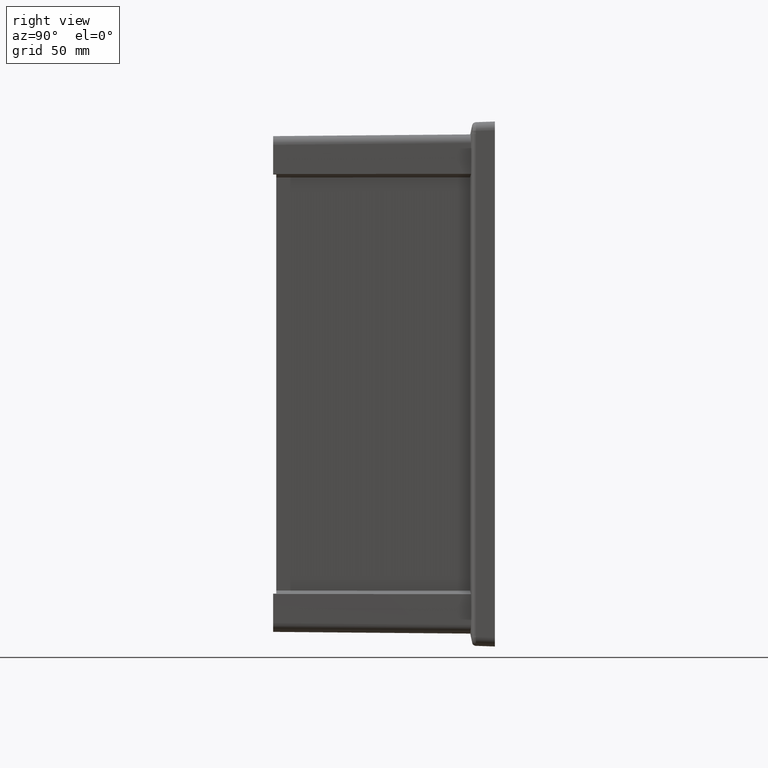
[diagram: clean part render]
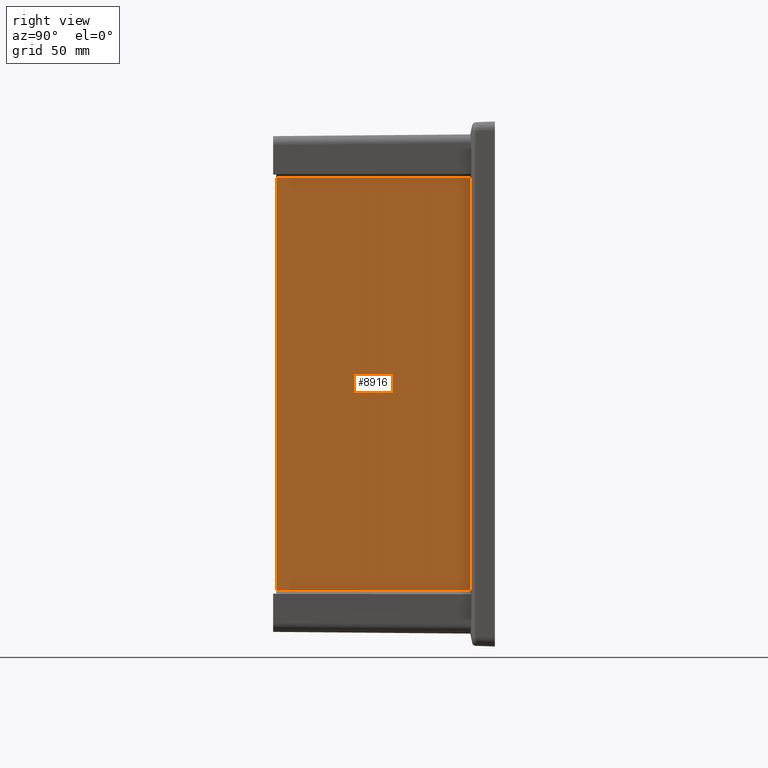
[diagram: same view with one face highlighted and labeled with its STEP entity id]
A machine part, right view. The second image highlights one B-rep face of the part: STEP entity #8916.
In plain terms, the highlighted planar face has unit normal (1, -0.0087, 0).
Its self-contained STEP definition (entity closure, byte-faithful):
#1354=DIRECTION('',(-8.726531697327E-3,-9.999615024574E-1,-9.171955234544E-4));
#1355=VECTOR('',#1354,1.227993807620E2);
#1356=CARTESIAN_POINT('',(1.309515572078E2,-1.570534671242E1,1.309064317165E2));
#1357=LINE('',#1356,#1355);
#1358=DIRECTION('',(-1.257218065010E-12,-4.932630919889E-11,1.E0));
#1359=VECTOR('',#1358,2.618096462930E2);
#1360=CARTESIAN_POINT('',(1.309515572082E2,-1.570534669951E1,
-1.309032145765E2));
#1361=LINE('',#1360,#1359);
#1362=DIRECTION('',(8.726531700559E-3,9.999615024575E-1,-9.171954447533E-4));
#1363=VECTOR('',#1362,1.227993807749E2);
#1364=CARTESIAN_POINT('',(1.298799445190E2,-1.385E2,-1.307905835439E2));
#1365=LINE('',#1364,#1363);
#1366=DIRECTION('',(-6.892893288164E-13,0.E0,-1.E0));
#1367=VECTOR('',#1366,2.615843842180E2);
#1368=CARTESIAN_POINT('',(1.298799445192E2,-1.385E2,1.307938006741E2));
#1369=LINE('',#1368,#1367);
#6125=CARTESIAN_POINT('',(1.298799445190E2,-1.385E2,-1.307905835439E2));
#6126=VERTEX_POINT('',#6125);
#6127=CARTESIAN_POINT('',(1.298799445192E2,-1.385E2,1.307938006741E2));
#6128=VERTEX_POINT('',#6127);
#6909=CARTESIAN_POINT('',(1.309515572082E2,-1.570534669951E1,
-1.309032145765E2));
#6910=VERTEX_POINT('',#6909);
#6911=CARTESIAN_POINT('',(1.309515572078E2,-1.570534671242E1,1.309064317165E2));
#6912=VERTEX_POINT('',#6911);
#8905=CARTESIAN_POINT('',(1.304157508555E2,-7.710267335150E1,
1.608536999996E-3));
#8906=DIRECTION('',(9.999619230642E-1,-8.726535500532E-3,0.E0));
#8907=DIRECTION('',(8.726535500532E-3,9.999619230642E-1,0.E0));
#8908=AXIS2_PLACEMENT_3D('',#8905,#8906,#8907);
#8909=PLANE('',#8908);
#8910=ORIENTED_EDGE('',*,*,#8900,.F.);
#8911=ORIENTED_EDGE('',*,*,#8868,.F.);
#8912=ORIENTED_EDGE('',*,*,#8845,.F.);
#8913=ORIENTED_EDGE('',*,*,#8681,.F.);
#8914=EDGE_LOOP('',(#8910,#8911,#8912,#8913));
#8915=FACE_OUTER_BOUND('',#8914,.F.);
#8916=ADVANCED_FACE('',(#8915),#8909,.T.);
#8681=EDGE_CURVE('',#6128,#6126,#1369,.T.);
#8845=EDGE_CURVE('',#6126,#6910,#1365,.T.);
#8868=EDGE_CURVE('',#6910,#6912,#1361,.T.);
#8900=EDGE_CURVE('',#6912,#6128,#1357,.T.);